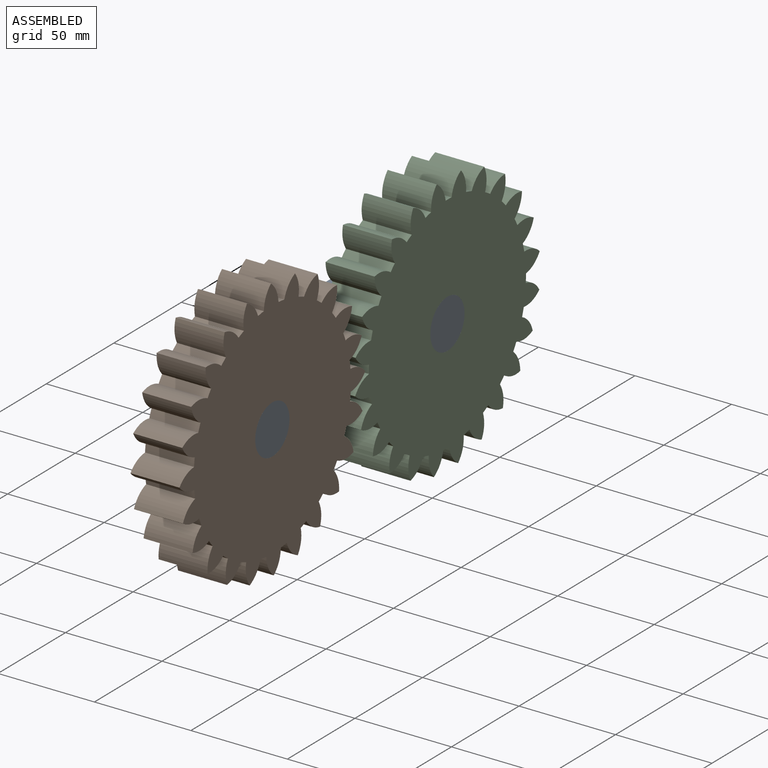
[diagram: assembled view]
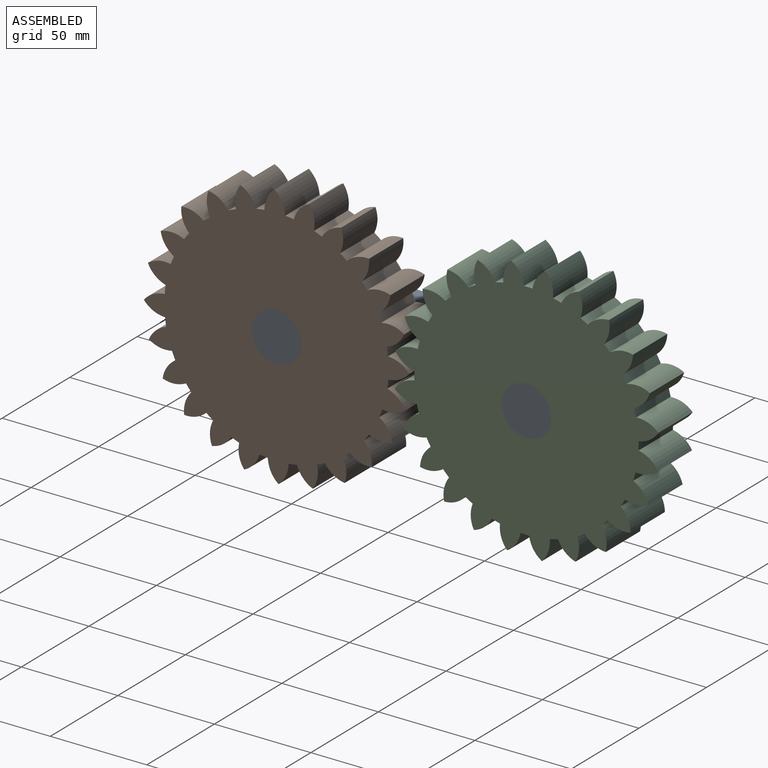
[diagram: assembled view, second angle]
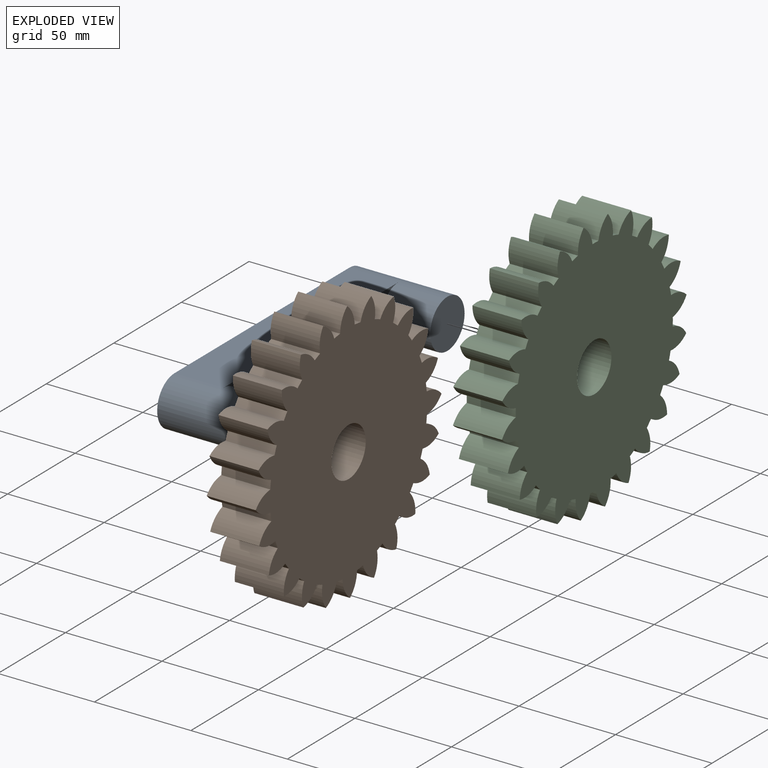
[diagram: exploded view]
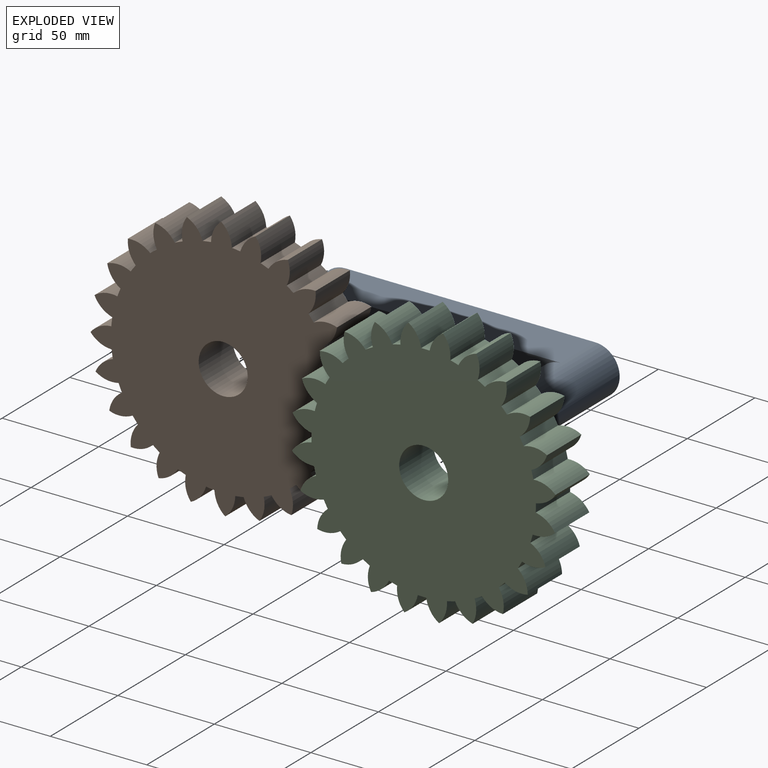
[diagram: exploded view, second angle]
ASSEMBLY  parts=3 mates=2
PART A: 8 faces, bbox 50.8x154.9x25.4 mm
  f0: plane 129.54x25.4mm, normal (1,0,0), area 2783.6mm2, adj f1,f2,f3,f4
  f1: cylinder r=12.7mm len=50.8mm, axis (-1,0,0), area 3040.2mm2, adj f0,f2,f4,f5,f6
  f2: plane 129.54x25.4mm, normal (0,0,-1), area 3290.3mm2, adj f0,f1,f3,f5
  f3: cylinder r=12.7mm len=50.8mm, axis (-1,0,0), area 3040.2mm2, adj f0,f2,f4,f5,f7
  f4: plane 129.54x25.4mm, normal (0,0,1), area 3290.3mm2, adj f0,f1,f3,f5
  f5: plane 154.94x25.4mm, normal (-1,0,0), area 3797mm2, adj f1,f2,f3,f4
  f6: plane 25.4x25.4mm, normal (1,0,0), area 506.7mm2, adj f1
  f7: plane 25.4x25.4mm, normal (1,0,0), area 506.7mm2, adj f3
PART B: 123 faces, bbox 25.4x137.2x137.2 mm
  f0: cylinder r=58.12mm len=25.4mm, axis (-1,0,0), area 110.7mm2, adj f23,f29,f30,f78
  f1: cylinder r=58.12mm len=25.4mm, axis (-1,0,0), area 110.7mm2, adj f29,f30,f74,f77
  f2: cylinder r=58.12mm len=25.4mm, axis (-1,0,0), area 110.7mm2, adj f29,f30,f70,f73
  f3: cylinder r=58.12mm len=25.4mm, axis (-1,0,0), area 110.7mm2, adj f29,f30,f66,f69
  f4: cylinder r=58.12mm len=25.4mm, axis (-1,0,0), area 110.7mm2, adj f29,f30,f62,f65
  f5: cylinder r=58.12mm len=25.4mm, axis (-1,0,0), area 110.7mm2, adj f29,f30,f58,f61
  f6: cylinder r=58.12mm len=25.4mm, axis (-1,0,0), area 110.7mm2, adj f29,f30,f54,f57
  f7: cylinder r=58.12mm len=25.4mm, axis (-1,0,0), area 110.7mm2, adj f29,f30,f50,f53
  f8: cylinder r=58.12mm len=25.4mm, axis (-1,0,0), area 110.7mm2, adj f29,f30,f46,f49
  f9: cylinder r=58.12mm len=25.4mm, axis (-1,0,0), area 110.7mm2, adj f29,f30,f42,f45
  f10: cylinder r=58.12mm len=25.4mm, axis (-1,0,0), area 110.7mm2, adj f29,f30,f38,f41
  f11: cylinder r=58.12mm len=25.4mm, axis (-1,0,0), area 110.7mm2, adj f29,f30,f34,f37
  f12: cylinder r=58.12mm len=25.4mm, axis (-1,0,0), area 110.7mm2, adj f29,f30,f33,f120
  f13: cylinder r=58.12mm len=25.4mm, axis (-1,0,0), area 110.7mm2, adj f29,f30,f118,f119
  f14: cylinder r=58.12mm len=25.4mm, axis (-1,0,0), area 110.7mm2, adj f29,f30,f114,f117
  f15: cylinder r=58.12mm len=25.4mm, axis (-1,0,0), area 110.7mm2, adj f29,f30,f110,f113
  f16: cylinder r=58.12mm len=25.4mm, axis (-1,0,0), area 110.7mm2, adj f29,f30,f106,f109
  f17: cylinder r=58.12mm len=25.4mm, axis (-1,0,0), area 110.7mm2, adj f29,f30,f102,f105
  f18: cylinder r=58.12mm len=25.4mm, axis (-1,0,0), area 110.7mm2, adj f29,f30,f98,f101
  f19: cylinder r=58.12mm len=25.4mm, axis (-1,0,0), area 110.7mm2, adj f29,f30,f94,f97
  f20: cylinder r=58.12mm len=25.4mm, axis (-1,0,0), area 110.7mm2, adj f29,f30,f90,f93
  f21: cylinder r=58.12mm len=25.4mm, axis (-1,0,0), area 110.7mm2, adj f29,f30,f86,f89
  f22: cylinder r=58.12mm len=25.4mm, axis (-1,0,0), area 110.7mm2, adj f29,f30,f81,f85
  f23: cylinder r=16.03mm len=25.4mm, axis (-1,0,0), area 144mm2, adj f0,f27,f29,f30
  f24: cylinder r=58.12mm len=25.4mm, axis (-1,0,0), area 110.7mm2, adj f25,f29,f30,f82
  f25: cylinder r=16.03mm len=25.4mm, axis (-1,0,0), area 144mm2, adj f24,f26,f29,f30
  f26: cylinder r=14.6mm len=25.4mm, axis (-1,0,0), area 174.5mm2, adj f25,f27,f29,f30
  f27: cylinder r=14.6mm len=25.4mm, axis (-1,0,0), area 174.5mm2, adj f23,f26,f29,f30
  f28: cylinder r=12.7mm len=25.4mm, axis (-1,0,0), area 2026.8mm2, adj f29,f30
  f29: plane 137.22x137.22mm, normal (1,0,0), area 11995.5mm2, adj f0,f1,f2,f3,f4,f5,f6,f7
  f30: plane 137.22x137.22mm, normal (-1,0,0), area 11995.5mm2, adj f0,f1,f2,f3,f4,f5,f6,f7
  f31: cylinder r=14.6mm len=25.4mm, axis (-1,0,0), area 174.5mm2, adj f29,f30,f32,f34
  f32: cylinder r=14.6mm len=25.4mm, axis (-1,0,0), area 174.5mm2, adj f29,f30,f31,f33
  f33: cylinder r=16.03mm len=25.4mm, axis (-1,0,0), area 144mm2, adj f12,f29,f30,f32
  f34: cylinder r=16.03mm len=25.4mm, axis (-1,0,0), area 144mm2, adj f11,f29,f30,f31
  f35: cylinder r=14.6mm len=25.4mm, axis (-1,0,0), area 174.5mm2, adj f29,f30,f36,f38
  f36: cylinder r=14.6mm len=25.4mm, axis (-1,0,0), area 174.5mm2, adj f29,f30,f35,f37
  f37: cylinder r=16.03mm len=25.4mm, axis (-1,0,0), area 144mm2, adj f11,f29,f30,f36
  f38: cylinder r=16.03mm len=25.4mm, axis (-1,0,0), area 144mm2, adj f10,f29,f30,f35
  f39: cylinder r=14.6mm len=25.4mm, axis (-1,0,0), area 174.5mm2, adj f29,f30,f40,f42
  f40: cylinder r=14.6mm len=25.4mm, axis (-1,0,0), area 174.5mm2, adj f29,f30,f39,f41
  f41: cylinder r=16.03mm len=25.4mm, axis (-1,0,0), area 144mm2, adj f10,f29,f30,f40
  f42: cylinder r=16.03mm len=25.4mm, axis (-1,0,0), area 144mm2, adj f9,f29,f30,f39
  f43: cylinder r=14.6mm len=25.4mm, axis (-1,0,0), area 174.5mm2, adj f29,f30,f44,f46
  f44: cylinder r=14.6mm len=25.4mm, axis (-1,0,0), area 174.5mm2, adj f29,f30,f43,f45
  f45: cylinder r=16.03mm len=25.4mm, axis (-1,0,0), area 144mm2, adj f9,f29,f30,f44
  f46: cylinder r=16.03mm len=25.4mm, axis (-1,0,0), area 144mm2, adj f8,f29,f30,f43
  f47: cylinder r=14.6mm len=25.4mm, axis (-1,0,0), area 174.5mm2, adj f29,f30,f48,f50
  f48: cylinder r=14.6mm len=25.4mm, axis (-1,0,0), area 174.5mm2, adj f29,f30,f47,f49
  f49: cylinder r=16.03mm len=25.4mm, axis (-1,0,0), area 144mm2, adj f8,f29,f30,f48
  f50: cylinder r=16.03mm len=25.4mm, axis (-1,0,0), area 144mm2, adj f7,f29,f30,f47
  f51: cylinder r=14.6mm len=25.4mm, axis (-1,0,0), area 174.5mm2, adj f29,f30,f52,f54
  f52: cylinder r=14.6mm len=25.4mm, axis (-1,0,0), area 174.5mm2, adj f29,f30,f51,f53
  f53: cylinder r=16.03mm len=25.4mm, axis (-1,0,0), area 144mm2, adj f7,f29,f30,f52
  f54: cylinder r=16.03mm len=25.4mm, axis (-1,0,0), area 144mm2, adj f6,f29,f30,f51
  f55: cylinder r=14.6mm len=25.4mm, axis (-1,0,0), area 174.5mm2, adj f29,f30,f56,f58
  f56: cylinder r=14.6mm len=25.4mm, axis (-1,0,0), area 174.5mm2, adj f29,f30,f55,f57
  f57: cylinder r=16.03mm len=25.4mm, axis (-1,0,0), area 144mm2, adj f6,f29,f30,f56
  f58: cylinder r=16.03mm len=25.4mm, axis (-1,0,0), area 144mm2, adj f5,f29,f30,f55
  f59: cylinder r=14.6mm len=25.4mm, axis (-1,0,0), area 174.5mm2, adj f29,f30,f60,f62
  f60: cylinder r=14.6mm len=25.4mm, axis (-1,0,0), area 174.5mm2, adj f29,f30,f59,f61
  f61: cylinder r=16.03mm len=25.4mm, axis (-1,0,0), area 144mm2, adj f5,f29,f30,f60
  f62: cylinder r=16.03mm len=25.4mm, axis (-1,0,0), area 144mm2, adj f4,f29,f30,f59
  f63: cylinder r=14.6mm len=25.4mm, axis (-1,0,0), area 174.5mm2, adj f29,f30,f64,f66
  f64: cylinder r=14.6mm len=25.4mm, axis (-1,0,0), area 174.5mm2, adj f29,f30,f63,f65
  f65: cylinder r=16.03mm len=25.4mm, axis (-1,0,0), area 144mm2, adj f4,f29,f30,f64
  f66: cylinder r=16.03mm len=25.4mm, axis (-1,0,0), area 144mm2, adj f3,f29,f30,f63
  f67: cylinder r=14.6mm len=25.4mm, axis (-1,0,0), area 174.5mm2, adj f29,f30,f68,f70
  f68: cylinder r=14.6mm len=25.4mm, axis (-1,0,0), area 174.5mm2, adj f29,f30,f67,f69
  f69: cylinder r=16.03mm len=25.4mm, axis (-1,0,0), area 144mm2, adj f3,f29,f30,f68
  f70: cylinder r=16.03mm len=25.4mm, axis (-1,0,0), area 144mm2, adj f2,f29,f30,f67
  f71: cylinder r=14.6mm len=25.4mm, axis (-1,0,0), area 174.5mm2, adj f29,f30,f72,f74
  f72: cylinder r=14.6mm len=25.4mm, axis (-1,0,0), area 174.5mm2, adj f29,f30,f71,f73
  f73: cylinder r=16.03mm len=25.4mm, axis (-1,0,0), area 144mm2, adj f2,f29,f30,f72
  f74: cylinder r=16.03mm len=25.4mm, axis (-1,0,0), area 144mm2, adj f1,f29,f30,f71
  f75: cylinder r=14.6mm len=25.4mm, axis (-1,0,0), area 174.5mm2, adj f29,f30,f76,f78
  f76: cylinder r=14.6mm len=25.4mm, axis (-1,0,0), area 174.5mm2, adj f29,f30,f75,f77
  f77: cylinder r=16.03mm len=25.4mm, axis (-1,0,0), area 144mm2, adj f1,f29,f30,f76
  f78: cylinder r=16.03mm len=25.4mm, axis (-1,0,0), area 144mm2, adj f0,f29,f30,f75
  f79: cylinder r=14.6mm len=25.4mm, axis (-1,0,0), area 174.5mm2, adj f29,f30,f80,f81
  f80: cylinder r=14.6mm len=25.4mm, axis (-1,0,0), area 174.5mm2, adj f29,f30,f79,f82
  f81: cylinder r=16.03mm len=25.4mm, axis (-1,0,0), area 144mm2, adj f22,f29,f30,f79
  f82: cylinder r=16.03mm len=25.4mm, axis (-1,0,0), area 144mm2, adj f24,f29,f30,f80
  f83: cylinder r=14.6mm len=25.4mm, axis (-1,0,0), area 174.5mm2, adj f29,f30,f84,f86
  f84: cylinder r=14.6mm len=25.4mm, axis (-1,0,0), area 174.5mm2, adj f29,f30,f83,f85
  f85: cylinder r=16.03mm len=25.4mm, axis (-1,0,0), area 144mm2, adj f22,f29,f30,f84
  f86: cylinder r=16.03mm len=25.4mm, axis (-1,0,0), area 144mm2, adj f21,f29,f30,f83
  f87: cylinder r=14.6mm len=25.4mm, axis (-1,0,0), area 174.5mm2, adj f29,f30,f88,f90
  f88: cylinder r=14.6mm len=25.4mm, axis (-1,0,0), area 174.5mm2, adj f29,f30,f87,f89
  f89: cylinder r=16.03mm len=25.4mm, axis (-1,0,0), area 144mm2, adj f21,f29,f30,f88
  f90: cylinder r=16.03mm len=25.4mm, axis (-1,0,0), area 144mm2, adj f20,f29,f30,f87
  f91: cylinder r=14.6mm len=25.4mm, axis (-1,0,0), area 174.5mm2, adj f29,f30,f92,f94
  f92: cylinder r=14.6mm len=25.4mm, axis (-1,0,0), area 174.5mm2, adj f29,f30,f91,f93
  f93: cylinder r=16.03mm len=25.4mm, axis (-1,0,0), area 144mm2, adj f20,f29,f30,f92
  f94: cylinder r=16.03mm len=25.4mm, axis (-1,0,0), area 144mm2, adj f19,f29,f30,f91
  f95: cylinder r=14.6mm len=25.4mm, axis (-1,0,0), area 174.5mm2, adj f29,f30,f96,f98
  f96: cylinder r=14.6mm len=25.4mm, axis (-1,0,0), area 174.5mm2, adj f29,f30,f95,f97
  f97: cylinder r=16.03mm len=25.4mm, axis (-1,0,0), area 144mm2, adj f19,f29,f30,f96
  f98: cylinder r=16.03mm len=25.4mm, axis (-1,0,0), area 144mm2, adj f18,f29,f30,f95
  f99: cylinder r=14.6mm len=25.4mm, axis (-1,0,0), area 174.5mm2, adj f29,f30,f100,f102
  f100: cylinder r=14.6mm len=25.4mm, axis (-1,0,0), area 174.5mm2, adj f29,f30,f99,f101
  f101: cylinder r=16.03mm len=25.4mm, axis (-1,0,0), area 144mm2, adj f18,f29,f30,f100
  f102: cylinder r=16.03mm len=25.4mm, axis (-1,0,0), area 144mm2, adj f17,f29,f30,f99
  f103: cylinder r=14.6mm len=25.4mm, axis (-1,0,0), area 174.5mm2, adj f29,f30,f104,f106
  f104: cylinder r=14.6mm len=25.4mm, axis (-1,0,0), area 174.5mm2, adj f29,f30,f103,f105
  f105: cylinder r=16.03mm len=25.4mm, axis (-1,0,0), area 144mm2, adj f17,f29,f30,f104
  f106: cylinder r=16.03mm len=25.4mm, axis (-1,0,0), area 144mm2, adj f16,f29,f30,f103
  f107: cylinder r=14.6mm len=25.4mm, axis (-1,0,0), area 174.5mm2, adj f29,f30,f108,f110
  f108: cylinder r=14.6mm len=25.4mm, axis (-1,0,0), area 174.5mm2, adj f29,f30,f107,f109
  f109: cylinder r=16.03mm len=25.4mm, axis (-1,0,0), area 144mm2, adj f16,f29,f30,f108
  f110: cylinder r=16.03mm len=25.4mm, axis (-1,0,0), area 144mm2, adj f15,f29,f30,f107
  f111: cylinder r=14.6mm len=25.4mm, axis (-1,0,0), area 174.5mm2, adj f29,f30,f112,f114
  f112: cylinder r=14.6mm len=25.4mm, axis (-1,0,0), area 174.5mm2, adj f29,f30,f111,f113
  f113: cylinder r=16.03mm len=25.4mm, axis (-1,0,0), area 144mm2, adj f15,f29,f30,f112
  f114: cylinder r=16.03mm len=25.4mm, axis (-1,0,0), area 144mm2, adj f14,f29,f30,f111
  f115: cylinder r=14.6mm len=25.4mm, axis (-1,0,0), area 174.5mm2, adj f29,f30,f116,f118
  f116: cylinder r=14.6mm len=25.4mm, axis (-1,0,0), area 174.5mm2, adj f29,f30,f115,f117
  f117: cylinder r=16.03mm len=25.4mm, axis (-1,0,0), area 144mm2, adj f14,f29,f30,f116
  f118: cylinder r=16.03mm len=25.4mm, axis (-1,0,0), area 144mm2, adj f13,f29,f30,f115
  f119: cylinder r=16.03mm len=25.4mm, axis (-1,0,0), area 144mm2, adj f13,f29,f30,f122
  f120: cylinder r=16.03mm len=25.4mm, axis (-1,0,0), area 144mm2, adj f12,f29,f30,f121
  f121: cylinder r=14.6mm len=25.4mm, axis (-1,0,0), area 174.5mm2, adj f29,f30,f120,f122
  f122: cylinder r=14.6mm len=25.4mm, axis (-1,0,0), area 174.5mm2, adj f29,f30,f119,f121
PART C: 123 faces, bbox 25.4x137.2x137.2 mm
  f0: cylinder r=58.12mm len=25.4mm, axis (-1,0,0), area 110.7mm2, adj f23,f29,f30,f78
  f1: cylinder r=58.12mm len=25.4mm, axis (-1,0,0), area 110.7mm2, adj f29,f30,f74,f77
  f2: cylinder r=58.12mm len=25.4mm, axis (-1,0,0), area 110.7mm2, adj f29,f30,f70,f73
  f3: cylinder r=58.12mm len=25.4mm, axis (-1,0,0), area 110.7mm2, adj f29,f30,f66,f69
  f4: cylinder r=58.12mm len=25.4mm, axis (-1,0,0), area 110.7mm2, adj f29,f30,f62,f65
  f5: cylinder r=58.12mm len=25.4mm, axis (-1,0,0), area 110.7mm2, adj f29,f30,f58,f61
  f6: cylinder r=58.12mm len=25.4mm, axis (-1,0,0), area 110.7mm2, adj f29,f30,f54,f57
  f7: cylinder r=58.12mm len=25.4mm, axis (-1,0,0), area 110.7mm2, adj f29,f30,f50,f53
  f8: cylinder r=58.12mm len=25.4mm, axis (-1,0,0), area 110.7mm2, adj f29,f30,f46,f49
  f9: cylinder r=58.12mm len=25.4mm, axis (-1,0,0), area 110.7mm2, adj f29,f30,f42,f45
  f10: cylinder r=58.12mm len=25.4mm, axis (-1,0,0), area 110.7mm2, adj f29,f30,f38,f41
  f11: cylinder r=58.12mm len=25.4mm, axis (-1,0,0), area 110.7mm2, adj f29,f30,f34,f37
  f12: cylinder r=58.12mm len=25.4mm, axis (-1,0,0), area 110.7mm2, adj f29,f30,f33,f120
  f13: cylinder r=58.12mm len=25.4mm, axis (-1,0,0), area 110.7mm2, adj f29,f30,f118,f119
  f14: cylinder r=58.12mm len=25.4mm, axis (-1,0,0), area 110.7mm2, adj f29,f30,f114,f117
  f15: cylinder r=58.12mm len=25.4mm, axis (-1,0,0), area 110.7mm2, adj f29,f30,f110,f113
  f16: cylinder r=58.12mm len=25.4mm, axis (-1,0,0), area 110.7mm2, adj f29,f30,f106,f109
  f17: cylinder r=58.12mm len=25.4mm, axis (-1,0,0), area 110.7mm2, adj f29,f30,f102,f105
  f18: cylinder r=58.12mm len=25.4mm, axis (-1,0,0), area 110.7mm2, adj f29,f30,f98,f101
  f19: cylinder r=58.12mm len=25.4mm, axis (-1,0,0), area 110.7mm2, adj f29,f30,f94,f97
  f20: cylinder r=58.12mm len=25.4mm, axis (-1,0,0), area 110.7mm2, adj f29,f30,f90,f93
  f21: cylinder r=58.12mm len=25.4mm, axis (-1,0,0), area 110.7mm2, adj f29,f30,f86,f89
  f22: cylinder r=58.12mm len=25.4mm, axis (-1,0,0), area 110.7mm2, adj f29,f30,f81,f85
  f23: cylinder r=16.03mm len=25.4mm, axis (-1,0,0), area 144mm2, adj f0,f27,f29,f30
  f24: cylinder r=58.12mm len=25.4mm, axis (-1,0,0), area 110.7mm2, adj f25,f29,f30,f82
  f25: cylinder r=16.03mm len=25.4mm, axis (-1,0,0), area 144mm2, adj f24,f26,f29,f30
  f26: cylinder r=14.6mm len=25.4mm, axis (-1,0,0), area 174.5mm2, adj f25,f27,f29,f30
  f27: cylinder r=14.6mm len=25.4mm, axis (-1,0,0), area 174.5mm2, adj f23,f26,f29,f30
  f28: cylinder r=12.7mm len=25.4mm, axis (-1,0,0), area 2026.8mm2, adj f29,f30
  f29: plane 137.22x137.22mm, normal (1,0,0), area 11995.5mm2, adj f0,f1,f2,f3,f4,f5,f6,f7
  f30: plane 137.22x137.22mm, normal (-1,0,0), area 11995.5mm2, adj f0,f1,f2,f3,f4,f5,f6,f7
  f31: cylinder r=14.6mm len=25.4mm, axis (-1,0,0), area 174.5mm2, adj f29,f30,f32,f34
  f32: cylinder r=14.6mm len=25.4mm, axis (-1,0,0), area 174.5mm2, adj f29,f30,f31,f33
  f33: cylinder r=16.03mm len=25.4mm, axis (-1,0,0), area 144mm2, adj f12,f29,f30,f32
  f34: cylinder r=16.03mm len=25.4mm, axis (-1,0,0), area 144mm2, adj f11,f29,f30,f31
  f35: cylinder r=14.6mm len=25.4mm, axis (-1,0,0), area 174.5mm2, adj f29,f30,f36,f38
  f36: cylinder r=14.6mm len=25.4mm, axis (-1,0,0), area 174.5mm2, adj f29,f30,f35,f37
  f37: cylinder r=16.03mm len=25.4mm, axis (-1,0,0), area 144mm2, adj f11,f29,f30,f36
  f38: cylinder r=16.03mm len=25.4mm, axis (-1,0,0), area 144mm2, adj f10,f29,f30,f35
  f39: cylinder r=14.6mm len=25.4mm, axis (-1,0,0), area 174.5mm2, adj f29,f30,f40,f42
  f40: cylinder r=14.6mm len=25.4mm, axis (-1,0,0), area 174.5mm2, adj f29,f30,f39,f41
  f41: cylinder r=16.03mm len=25.4mm, axis (-1,0,0), area 144mm2, adj f10,f29,f30,f40
  f42: cylinder r=16.03mm len=25.4mm, axis (-1,0,0), area 144mm2, adj f9,f29,f30,f39
  f43: cylinder r=14.6mm len=25.4mm, axis (-1,0,0), area 174.5mm2, adj f29,f30,f44,f46
  f44: cylinder r=14.6mm len=25.4mm, axis (-1,0,0), area 174.5mm2, adj f29,f30,f43,f45
  f45: cylinder r=16.03mm len=25.4mm, axis (-1,0,0), area 144mm2, adj f9,f29,f30,f44
  f46: cylinder r=16.03mm len=25.4mm, axis (-1,0,0), area 144mm2, adj f8,f29,f30,f43
  f47: cylinder r=14.6mm len=25.4mm, axis (-1,0,0), area 174.5mm2, adj f29,f30,f48,f50
  f48: cylinder r=14.6mm len=25.4mm, axis (-1,0,0), area 174.5mm2, adj f29,f30,f47,f49
  f49: cylinder r=16.03mm len=25.4mm, axis (-1,0,0), area 144mm2, adj f8,f29,f30,f48
  f50: cylinder r=16.03mm len=25.4mm, axis (-1,0,0), area 144mm2, adj f7,f29,f30,f47
  f51: cylinder r=14.6mm len=25.4mm, axis (-1,0,0), area 174.5mm2, adj f29,f30,f52,f54
  f52: cylinder r=14.6mm len=25.4mm, axis (-1,0,0), area 174.5mm2, adj f29,f30,f51,f53
  f53: cylinder r=16.03mm len=25.4mm, axis (-1,0,0), area 144mm2, adj f7,f29,f30,f52
  f54: cylinder r=16.03mm len=25.4mm, axis (-1,0,0), area 144mm2, adj f6,f29,f30,f51
  f55: cylinder r=14.6mm len=25.4mm, axis (-1,0,0), area 174.5mm2, adj f29,f30,f56,f58
  f56: cylinder r=14.6mm len=25.4mm, axis (-1,0,0), area 174.5mm2, adj f29,f30,f55,f57
  f57: cylinder r=16.03mm len=25.4mm, axis (-1,0,0), area 144mm2, adj f6,f29,f30,f56
  f58: cylinder r=16.03mm len=25.4mm, axis (-1,0,0), area 144mm2, adj f5,f29,f30,f55
  f59: cylinder r=14.6mm len=25.4mm, axis (-1,0,0), area 174.5mm2, adj f29,f30,f60,f62
  f60: cylinder r=14.6mm len=25.4mm, axis (-1,0,0), area 174.5mm2, adj f29,f30,f59,f61
  f61: cylinder r=16.03mm len=25.4mm, axis (-1,0,0), area 144mm2, adj f5,f29,f30,f60
  f62: cylinder r=16.03mm len=25.4mm, axis (-1,0,0), area 144mm2, adj f4,f29,f30,f59
  f63: cylinder r=14.6mm len=25.4mm, axis (-1,0,0), area 174.5mm2, adj f29,f30,f64,f66
  f64: cylinder r=14.6mm len=25.4mm, axis (-1,0,0), area 174.5mm2, adj f29,f30,f63,f65
  f65: cylinder r=16.03mm len=25.4mm, axis (-1,0,0), area 144mm2, adj f4,f29,f30,f64
  f66: cylinder r=16.03mm len=25.4mm, axis (-1,0,0), area 144mm2, adj f3,f29,f30,f63
  f67: cylinder r=14.6mm len=25.4mm, axis (-1,0,0), area 174.5mm2, adj f29,f30,f68,f70
  f68: cylinder r=14.6mm len=25.4mm, axis (-1,0,0), area 174.5mm2, adj f29,f30,f67,f69
  f69: cylinder r=16.03mm len=25.4mm, axis (-1,0,0), area 144mm2, adj f3,f29,f30,f68
  f70: cylinder r=16.03mm len=25.4mm, axis (-1,0,0), area 144mm2, adj f2,f29,f30,f67
  f71: cylinder r=14.6mm len=25.4mm, axis (-1,0,0), area 174.5mm2, adj f29,f30,f72,f74
  f72: cylinder r=14.6mm len=25.4mm, axis (-1,0,0), area 174.5mm2, adj f29,f30,f71,f73
  f73: cylinder r=16.03mm len=25.4mm, axis (-1,0,0), area 144mm2, adj f2,f29,f30,f72
  f74: cylinder r=16.03mm len=25.4mm, axis (-1,0,0), area 144mm2, adj f1,f29,f30,f71
  f75: cylinder r=14.6mm len=25.4mm, axis (-1,0,0), area 174.5mm2, adj f29,f30,f76,f78
  f76: cylinder r=14.6mm len=25.4mm, axis (-1,0,0), area 174.5mm2, adj f29,f30,f75,f77
  f77: cylinder r=16.03mm len=25.4mm, axis (-1,0,0), area 144mm2, adj f1,f29,f30,f76
  f78: cylinder r=16.03mm len=25.4mm, axis (-1,0,0), area 144mm2, adj f0,f29,f30,f75
  f79: cylinder r=14.6mm len=25.4mm, axis (-1,0,0), area 174.5mm2, adj f29,f30,f80,f81
  f80: cylinder r=14.6mm len=25.4mm, axis (-1,0,0), area 174.5mm2, adj f29,f30,f79,f82
  f81: cylinder r=16.03mm len=25.4mm, axis (-1,0,0), area 144mm2, adj f22,f29,f30,f79
  f82: cylinder r=16.03mm len=25.4mm, axis (-1,0,0), area 144mm2, adj f24,f29,f30,f80
  f83: cylinder r=14.6mm len=25.4mm, axis (-1,0,0), area 174.5mm2, adj f29,f30,f84,f86
  f84: cylinder r=14.6mm len=25.4mm, axis (-1,0,0), area 174.5mm2, adj f29,f30,f83,f85
  f85: cylinder r=16.03mm len=25.4mm, axis (-1,0,0), area 144mm2, adj f22,f29,f30,f84
  f86: cylinder r=16.03mm len=25.4mm, axis (-1,0,0), area 144mm2, adj f21,f29,f30,f83
  f87: cylinder r=14.6mm len=25.4mm, axis (-1,0,0), area 174.5mm2, adj f29,f30,f88,f90
  f88: cylinder r=14.6mm len=25.4mm, axis (-1,0,0), area 174.5mm2, adj f29,f30,f87,f89
  f89: cylinder r=16.03mm len=25.4mm, axis (-1,0,0), area 144mm2, adj f21,f29,f30,f88
  f90: cylinder r=16.03mm len=25.4mm, axis (-1,0,0), area 144mm2, adj f20,f29,f30,f87
  f91: cylinder r=14.6mm len=25.4mm, axis (-1,0,0), area 174.5mm2, adj f29,f30,f92,f94
  f92: cylinder r=14.6mm len=25.4mm, axis (-1,0,0), area 174.5mm2, adj f29,f30,f91,f93
  f93: cylinder r=16.03mm len=25.4mm, axis (-1,0,0), area 144mm2, adj f20,f29,f30,f92
  f94: cylinder r=16.03mm len=25.4mm, axis (-1,0,0), area 144mm2, adj f19,f29,f30,f91
  f95: cylinder r=14.6mm len=25.4mm, axis (-1,0,0), area 174.5mm2, adj f29,f30,f96,f98
  f96: cylinder r=14.6mm len=25.4mm, axis (-1,0,0), area 174.5mm2, adj f29,f30,f95,f97
  f97: cylinder r=16.03mm len=25.4mm, axis (-1,0,0), area 144mm2, adj f19,f29,f30,f96
  f98: cylinder r=16.03mm len=25.4mm, axis (-1,0,0), area 144mm2, adj f18,f29,f30,f95
  f99: cylinder r=14.6mm len=25.4mm, axis (-1,0,0), area 174.5mm2, adj f29,f30,f100,f102
  f100: cylinder r=14.6mm len=25.4mm, axis (-1,0,0), area 174.5mm2, adj f29,f30,f99,f101
  f101: cylinder r=16.03mm len=25.4mm, axis (-1,0,0), area 144mm2, adj f18,f29,f30,f100
  f102: cylinder r=16.03mm len=25.4mm, axis (-1,0,0), area 144mm2, adj f17,f29,f30,f99
  f103: cylinder r=14.6mm len=25.4mm, axis (-1,0,0), area 174.5mm2, adj f29,f30,f104,f106
  f104: cylinder r=14.6mm len=25.4mm, axis (-1,0,0), area 174.5mm2, adj f29,f30,f103,f105
  f105: cylinder r=16.03mm len=25.4mm, axis (-1,0,0), area 144mm2, adj f17,f29,f30,f104
  f106: cylinder r=16.03mm len=25.4mm, axis (-1,0,0), area 144mm2, adj f16,f29,f30,f103
  f107: cylinder r=14.6mm len=25.4mm, axis (-1,0,0), area 174.5mm2, adj f29,f30,f108,f110
  f108: cylinder r=14.6mm len=25.4mm, axis (-1,0,0), area 174.5mm2, adj f29,f30,f107,f109
  f109: cylinder r=16.03mm len=25.4mm, axis (-1,0,0), area 144mm2, adj f16,f29,f30,f108
  f110: cylinder r=16.03mm len=25.4mm, axis (-1,0,0), area 144mm2, adj f15,f29,f30,f107
  f111: cylinder r=14.6mm len=25.4mm, axis (-1,0,0), area 174.5mm2, adj f29,f30,f112,f114
  f112: cylinder r=14.6mm len=25.4mm, axis (-1,0,0), area 174.5mm2, adj f29,f30,f111,f113
  f113: cylinder r=16.03mm len=25.4mm, axis (-1,0,0), area 144mm2, adj f15,f29,f30,f112
  f114: cylinder r=16.03mm len=25.4mm, axis (-1,0,0), area 144mm2, adj f14,f29,f30,f111
  f115: cylinder r=14.6mm len=25.4mm, axis (-1,0,0), area 174.5mm2, adj f29,f30,f116,f118
  f116: cylinder r=14.6mm len=25.4mm, axis (-1,0,0), area 174.5mm2, adj f29,f30,f115,f117
  f117: cylinder r=16.03mm len=25.4mm, axis (-1,0,0), area 144mm2, adj f14,f29,f30,f116
  f118: cylinder r=16.03mm len=25.4mm, axis (-1,0,0), area 144mm2, adj f13,f29,f30,f115
  f119: cylinder r=16.03mm len=25.4mm, axis (-1,0,0), area 144mm2, adj f13,f29,f30,f122
  f120: cylinder r=16.03mm len=25.4mm, axis (-1,0,0), area 144mm2, adj f12,f29,f30,f121
  f121: cylinder r=14.6mm len=25.4mm, axis (-1,0,0), area 174.5mm2, adj f29,f30,f120,f122
  f122: cylinder r=14.6mm len=25.4mm, axis (-1,0,0), area 174.5mm2, adj f29,f30,f119,f121
PLACE A t=(-5.73,-11.25,-0.58)mm fixed
PLACE B rot(axis=(-1,0,0),62.9deg) t=(-5.73,-22.55,6.33)mm
PLACE C rot(axis=(1,0,0),62.9deg) t=(-5.73,70.54,-108.97)mm
MATE revolute B.f0 <-> A.f1  axis (1,0,0) through (45.07,-11.25,12.12)mm
MATE revolute C.f0 <-> A.f3  axis (1,0,0) through (45.07,118.29,12.12)mm
